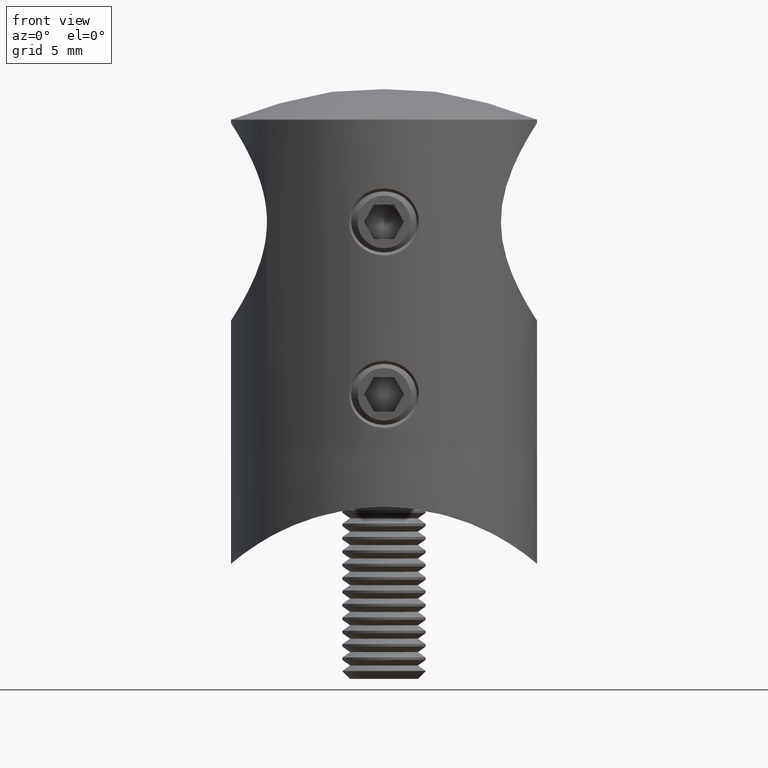
[diagram: clean part render]
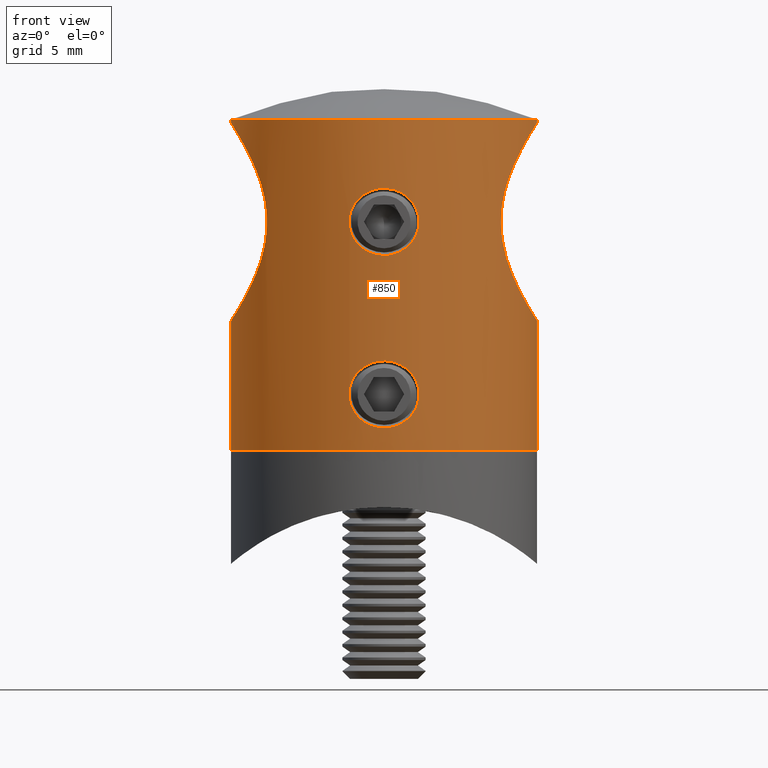
[diagram: same view with one face highlighted and labeled with its STEP entity id]
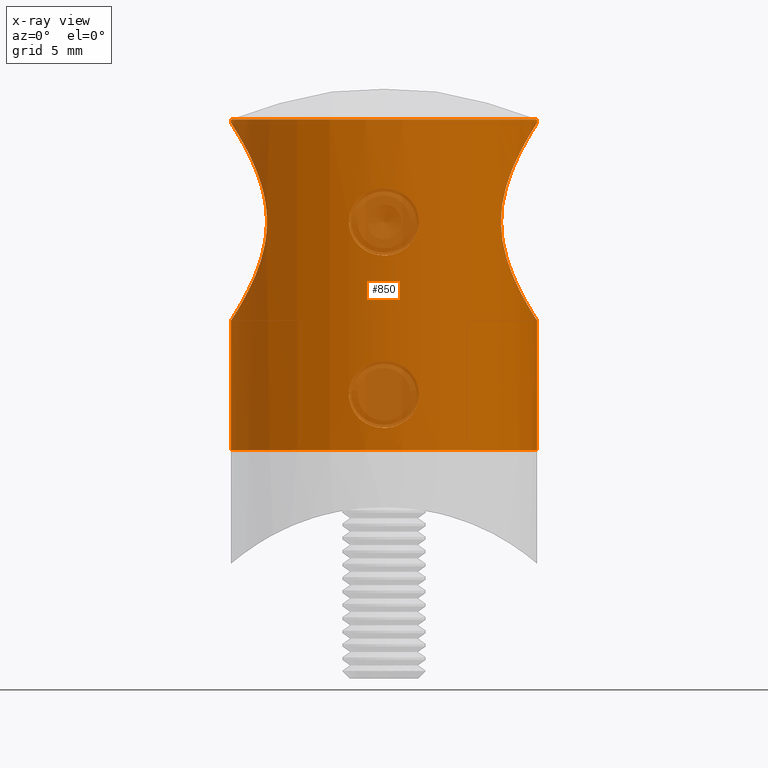
[diagram: x-ray of the same camera — body ghosted, the highlighted face saturated]
A machine part, front view. The second image highlights one B-rep face of the part: STEP entity #850.
The next image is the same camera in x-ray: the body ghosted, the highlighted face saturated — about 8% of this face is hidden behind the body in this view.
In plain terms, the highlighted cylindrical surface (bore or boss wall) has radius 11 mm, axis along (0, 0, 1).
Its self-contained STEP definition (entity closure, byte-faithful):
#122 = CARTESIAN_POINT ( 'NONE',  ( 10.99999999999999600, 0.0000000000000000000, 23.74878637916747000 ) ) ;
#145 = CARTESIAN_POINT ( 'NONE',  ( 8.441615027164326400, -7.053644850158703700, 17.33924664838004000 ) ) ;
#220 = CARTESIAN_POINT ( 'NONE',  ( 10.84297000111511100, -1.910690892895690100, 23.25460155054432200 ) ) ;
#303 = CARTESIAN_POINT ( 'NONE',  ( 9.611617826107234900, -5.361562930642149300, 21.07654444607350500 ) ) ;
#383 = CARTESIAN_POINT ( 'NONE',  ( 8.604462001010002600, -6.853532578562345100, 18.26917815072582100 ) ) ;
#456 = CARTESIAN_POINT ( 'NONE',  ( 9.454023007717232500, 5.631244608318725800, 20.74775790618729200 ) ) ;
#850 = ADVANCED_FACE ( 'NONE', ( #15464, #22122, #18250, #13267, #6925, #13543 ), #11902, .T. ) ;
#872 = CARTESIAN_POINT ( 'NONE',  ( -9.941559082019182400, 4.721753626895441000, 21.72179177554297200 ) ) ;
#954 = CARTESIAN_POINT ( 'NONE',  ( -10.52162891456611900, 3.215649772253206700, 22.73424068538132700 ) ) ;
#1178 = CARTESIAN_POINT ( 'NONE',  ( -8.716197689742701400, 6.713987155183081900, 14.04568685242710500 ) ) ;
#1258 = CARTESIAN_POINT ( 'NONE',  ( -8.713338137559071900, -6.714570131918350200, 14.08064251900250200 ) ) ;
#1327 = CARTESIAN_POINT ( 'NONE',  ( -9.126122353799150500, -6.148371097858401400, 12.82074655299189400 ) ) ;
#1399 = CARTESIAN_POINT ( 'NONE',  ( -10.83727758145454500, -1.898942890585058700, 9.554592817602502600 ) ) ;
#1405 = CARTESIAN_POINT ( 'NONE',  ( -1.397269774137160900, -10.91089534265097100, 14.39305190935820100 ) ) ;
#1455 = CARTESIAN_POINT ( 'NONE',  ( -2.495363705507605000, -10.71327480271960800, 4.317531738034352500 ) ) ;
#1459 = CARTESIAN_POINT ( 'NONE',  ( 1.995493121756457100, -10.81788920119303300, 14.92473889477621200 ) ) ;
#1492 = CARTESIAN_POINT ( 'NONE',  ( 1.893470199320557800, -10.83645095077188500, 17.99473827165266100 ) ) ;
#1540 = CARTESIAN_POINT ( 'NONE',  ( 2.511715917072544300, -10.70940162436372500, 3.998297708608496300 ) ) ;
#1571 = CARTESIAN_POINT ( 'NONE',  ( -10.93554320940684800, 1.212055794307699500, 23.39982116040938800 ) ) ;
#1575 = CARTESIAN_POINT ( 'NONE',  ( 2.511631889561162000, -10.70942133164945500, 16.23990702731718000 ) ) ;
#1617 = CARTESIAN_POINT ( 'NONE',  ( -2.087678545343330000, -10.80007399471471700, 2.657151107508259000 ) ) ;
#1648 = CARTESIAN_POINT ( 'NONE',  ( -2.511729057886776100, -10.70939854239878000, 16.55793633575457200 ) ) ;
#1697 = CARTESIAN_POINT ( 'NONE',  ( 1.535022905085276800, -10.89323192799682400, 5.918116975765959100 ) ) ;
#1734 = CARTESIAN_POINT ( 'NONE',  ( -2.087083062809130600, -10.80018908579545200, 17.74370445952115500 ) ) ;
#1778 = CARTESIAN_POINT ( 'NONE',  ( -1.892899697423030100, -10.83654340792634900, 2.404725380980155000 ) ) ;
#1779 = CARTESIAN_POINT ( 'NONE',  ( 11.00000000000000400, -4.065758146820641600E-016, 9.299999999999998900 ) ) ;
#1935 = CARTESIAN_POINT ( 'NONE',  ( 9.134031390889505900, 6.136687821570410200, 19.99930232546839500 ) ) ;
#2013 = CARTESIAN_POINT ( 'NONE',  ( 10.10591008084336000, 4.348277020147662600, 22.01730710083607100 ) ) ;
#2088 = CARTESIAN_POINT ( 'NONE',  ( 8.400921406657444000, 7.101022558136128800, 15.93882788113832800 ) ) ;
#2119 = B_SPLINE_CURVE_WITH_KNOTS ( 'NONE', 3,
 ( #13461, #11495, #9848, #18715, #13394, #11717, #17068, #20441, #9922, #6526, #7917, #2966, #11641, #1178, #22212, #16923, #9691, #2808, #20511, #4603, #16778, #8137, #15302, #2889, #15228, #15079, #22352, #11567, #20294, #872, #6233, #9773, #20368, #954, #2737, #13320, #4533, #1571, #5051, #11935, #6753, #4895, #13837, #3279, #15379, #22653, #8440, #13920, #3356, #8365, #20817, #22582, #6600, #12013, #10317, #10078, #8277, #4823, #17140, #15687, #17373, #20732, #3201, #5127, #18870, #20966, #22425, #1258, #20655, #4970, #1327, #15611, #10230, #12088, #8520, #11860, #10152, #17220, #17296, #19024, #13613, #1399, #22731, #6677, #19102, #3041 ),
 .UNSPECIFIED., .T., .F.,
 ( 4, 2, 2, 2, 2, 2, 2, 2, 2, 2, 2, 2, 2, 2, 2, 2, 2, 2, 2, 2, 2, 2, 2, 2, 2, 2, 2, 2, 2, 2, 2, 2, 2, 2, 2, 2, 2, 2, 2, 2, 2, 2, 4 ),
 ( 0.0000000000000000000, 0.001429294004371782500, 0.002858588008743564900, 0.004287882013115348000, 0.005717176017487131600, 0.007146470021858916000, 0.008575764026230701200, 0.01000505803060248700, 0.01071970503278837900, 0.01143435203497426500, 0.01286364603934605200, 0.01357829304153194300, 0.01429294004371783200, 0.01572223404808961700, 0.01715152805246140200, 0.01858082205683318800, 0.01929546905901908000, 0.02001011606120497700, 0.02143941006557676500, 0.02215405706776266500, 0.02286870406994855700, 0.02358335107213445400, 0.02429799807432034600, 0.02572729207869214500, 0.02644193908087803800, 0.02715658608306393400, 0.02787123308524983000, 0.02858588008743573000, 0.03001517409180752900, 0.03144446809617931800, 0.03287376210055111000, 0.03430305610492290200, 0.03573235010929469400, 0.03644699711148059700, 0.03716164411366650000, 0.03859093811803830000, 0.04002023212241010600, 0.04144952612678190500, 0.04216417312896780800, 0.04287882013115371100, 0.04359346713333961400, 0.04430811413552551700, 0.04573740813989731600 ),
 .UNSPECIFIED. ) ;
#2159 = CARTESIAN_POINT ( 'NONE',  ( 8.775104742126355700, 6.634005485550293500, 13.85960298956172700 ) ) ;
#2230 = CARTESIAN_POINT ( 'NONE',  ( 8.971544570989790300, -6.368727316150223100, 19.57206776467770100 ) ) ;
#2429 = CARTESIAN_POINT ( 'NONE',  ( 0.0000000000000000000, 0.0000000000000000000, 25.99999999999999600 ) ) ;
#2668 = ORIENTED_EDGE ( 'NONE', *, *, #8670, .T. ) ;
#2737 = CARTESIAN_POINT ( 'NONE',  ( -10.58394417430352300, 3.004956304348640900, 22.83701482432169200 ) ) ;
#2808 = CARTESIAN_POINT ( 'NONE',  ( -8.413237320255293000, 7.086500040589212900, 15.90136674223512400 ) ) ;
#2860 = CARTESIAN_POINT ( 'NONE',  ( -1.533328306870229700, -10.89347143110832900, 2.080631270009437800 ) ) ;
#2889 = CARTESIAN_POINT ( 'NONE',  ( -8.712531411531246700, 6.715614010298820900, 18.71630400190571200 ) ) ;
#2966 = CARTESIAN_POINT ( 'NONE',  ( -9.132219529114744100, 6.139339865191939100, 12.80533429294058900 ) ) ;
#3041 = CARTESIAN_POINT ( 'NONE',  ( -10.99999999999999600, 2.710505431213761100E-016, 9.299999999999995400 ) ) ;
#3042 = VERTEX_POINT ( 'NONE', #17723 ) ;
#3092 = CARTESIAN_POINT ( 'NONE',  ( -0.3315329495189393000, -10.99999999999999600, 1.584844930053871600 ) ) ;
#3201 = CARTESIAN_POINT ( 'NONE',  ( -8.402678174434401000, -7.098943678384630500, 16.89213793340527300 ) ) ;
#3211 = CARTESIAN_POINT ( 'NONE',  ( 1.998357958369216600, -10.81735236367316800, 17.87152513571616200 ) ) ;
#3253 = CARTESIAN_POINT ( 'NONE',  ( -2.319860156032100400, -10.75259265742242600, 4.925778238272567200 ) ) ;
#3279 = CARTESIAN_POINT ( 'NONE',  ( -10.96270294519259100, -0.9359780770641063000, 23.44210052358779400 ) ) ;
#3284 = CARTESIAN_POINT ( 'NONE',  ( -2.430803093581094000, -10.72810763096586800, 17.02839688706989600 ) ) ;
#3330 = CARTESIAN_POINT ( 'NONE',  ( -2.177980241879993600, -10.78262365602483500, 5.213167996627087900 ) ) ;
#3331 = CARTESIAN_POINT ( 'NONE',  ( 10.96821046489719200, -0.9576882426351975800, 9.348973725324684700 ) ) ;
#3356 = CARTESIAN_POINT ( 'NONE',  ( -10.53058741645235900, -3.186281656805154800, 22.74910505009927800 ) ) ;
#3363 = CARTESIAN_POINT ( 'NONE',  ( -2.177980241902248300, -10.78262365602053500, 17.61316799658935400 ) ) ;
#3409 = CARTESIAN_POINT ( 'NONE',  ( -0.4903270790838651400, -10.98906635504204500, 6.368688208749404100 ) ) ;
#3412 = CARTESIAN_POINT ( 'NONE',  ( 9.132219529114749400, -6.139339865191940900, 12.80533429294058900 ) ) ;
#3445 = CARTESIAN_POINT ( 'NONE',  ( -2.511703974928243700, -10.70940442520010400, 16.24273929157860500 ) ) ;
#3465 = CARTESIAN_POINT ( 'NONE',  ( 11.00000000000000000, 0.0000000000000000000, 0.0000000000000000000 ) ) ;
#3488 = CARTESIAN_POINT ( 'NONE',  ( 2.256039582255863900, -10.76635616935171300, 2.926755654170211800 ) ) ;
#3489 = CARTESIAN_POINT ( 'NONE',  ( 8.413237320255296600, -7.086500040589212900, 15.90136674223512400 ) ) ;
#3521 = CARTESIAN_POINT ( 'NONE',  ( 2.320207892953276600, -10.75251762767572900, 17.32497216206398200 ) ) ;
#3566 = CARTESIAN_POINT ( 'NONE',  ( 1.116343252776195600, -10.94426300031197400, 6.169244775404881600 ) ) ;
#3567 = CARTESIAN_POINT ( 'NONE',  ( 10.53371792439568500, -3.199456506150320800, 10.04470791799388100 ) ) ;
#3725 = CARTESIAN_POINT ( 'NONE',  ( 10.99297397562942900, 0.4598195259154076500, 23.48913258083436500 ) ) ;
#3804 = CARTESIAN_POINT ( 'NONE',  ( 8.974584736475273800, 6.364495021462755800, 13.21915323638559100 ) ) ;
#3876 = CARTESIAN_POINT ( 'NONE',  ( 8.442684130846840800, 7.052366154554805500, 15.45217027337697100 ) ) ;
#3905 = VERTEX_POINT ( 'NONE', #19127 ) ;
#3952 = CARTESIAN_POINT ( 'NONE',  ( 9.866065930372878200, 4.867538550024849400, 21.57379312522551000 ) ) ;
#4028 = CARTESIAN_POINT ( 'NONE',  ( 10.76013234905316700, 2.327659393083309600, 23.12391534086663100 ) ) ;
#4430 = DIRECTION ( 'NONE',  ( -0.0000000000000000000, -0.0000000000000000000, 1.000000000000000000 ) ) ;
#4533 = CARTESIAN_POINT ( 'NONE',  ( -10.84297000111510400, 1.910690892895686300, 23.25460155054431900 ) ) ;
#4603 = CARTESIAN_POINT ( 'NONE',  ( -8.400936357774282800, 7.101004865438452100, 16.86596985220173700 ) ) ;
#4674 = CARTESIAN_POINT ( 'NONE',  ( -1.115993498471008700, -10.94431255610991500, 14.23051304831070000 ) ) ;
#4732 = DIRECTION ( 'NONE',  ( -0.0000000000000000000, -0.0000000000000000000, 1.000000000000000000 ) ) ;
#4823 = CARTESIAN_POINT ( 'NONE',  ( -9.134031390889502300, -6.136687821570409300, 19.99930232546839900 ) ) ;
#4895 = CARTESIAN_POINT ( 'NONE',  ( -11.00035846530514000, -0.2214725248977521800, 23.50055536974437200 ) ) ;
#4942 = CARTESIAN_POINT ( 'NONE',  ( 1.263044276341072700, -10.92810671215594800, 6.093506342078076600 ) ) ;
#4970 = CARTESIAN_POINT ( 'NONE',  ( -8.974584736475275500, -6.364495021462750500, 13.21915323638558000 ) ) ;
#4976 = CARTESIAN_POINT ( 'NONE',  ( -2.430626934628957100, -10.72814813956344100, 15.77081717116243500 ) ) ;
#4992 = VERTEX_POINT ( 'NONE', #8544 ) ;
#5018 = CARTESIAN_POINT ( 'NONE',  ( -2.511729057886776100, -10.70939854239878000, 4.157936335757463000 ) ) ;
#5051 = CARTESIAN_POINT ( 'NONE',  ( -10.95950930229003000, 0.9729361877379643100, 23.43713052271612400 ) ) ;
#5056 = CARTESIAN_POINT ( 'NONE',  ( 2.431469541523701300, -10.72795581613253500, 17.02585049196845500 ) ) ;
#5099 = CARTESIAN_POINT ( 'NONE',  ( -1.776361239528236000, -10.85562254072522800, 5.707474951774919700 ) ) ;
#5127 = CARTESIAN_POINT ( 'NONE',  ( -8.400921406657444000, -7.101022558136128800, 15.93882788113832500 ) ) ;
#5135 = CARTESIAN_POINT ( 'NONE',  ( -1.261211241404091900, -10.92831925419361200, 14.30547254870696400 ) ) ;
#5179 = CARTESIAN_POINT ( 'NONE',  ( 2.430721202022804000, -10.72812621128730700, 3.371317447623022100 ) ) ;
#5210 = CARTESIAN_POINT ( 'NONE',  ( 0.9648935137385287200, -10.95759921274479100, 18.62983488542676700 ) ) ;
#5259 = CARTESIAN_POINT ( 'NONE',  ( 2.178857699620390800, -10.78245327803794100, 2.788117446777010700 ) ) ;
#5294 = CARTESIAN_POINT ( 'NONE',  ( -1.892899697437106800, -10.83654340792404500, 14.80472538099371200 ) ) ;
#5342 = CARTESIAN_POINT ( 'NONE',  ( 10.84731057724800800, -1.885380813810667400, 9.538551356808243400 ) ) ;
#5423 = CARTESIAN_POINT ( 'NONE',  ( 9.451433528349369300, -5.635541834417797900, 12.05790560231922000 ) ) ;
#5499 = CARTESIAN_POINT ( 'NONE',  ( 0.1643935056628486900, -11.00000000000000000, 1.584844886136918000 ) ) ;
#5500 = CARTESIAN_POINT ( 'NONE',  ( 10.93957804708263900, 1.175367915195186400, 23.40611913367371600 ) ) ;
#5579 = CARTESIAN_POINT ( 'NONE',  ( 9.941566712052258800, 4.721521006677412500, 11.07832343451946900 ) ) ;
#5653 = CARTESIAN_POINT ( 'NONE',  ( 10.59253960969031100, 2.974511089570728300, 22.85112724400619300 ) ) ;
#5663 = CIRCLE ( 'NONE', #12720, 10.99999999999999600 ) ;
#5734 = CARTESIAN_POINT ( 'NONE',  ( 10.74873748235941500, 2.348874627246540800, 9.695645327102669200 ) ) ;
#5803 = CARTESIAN_POINT ( 'NONE',  ( 10.58647855960269600, 2.995887424184126200, 9.958827788779814200 ) ) ;
#5878 = EDGE_CURVE ( 'NONE', #3905, #3905, #13019, .T. ) ;
#5987 = CIRCLE ( 'NONE', #21282, 11.00000000000000000 ) ;
#6233 = CARTESIAN_POINT ( 'NONE',  ( -10.10047049893865000, 4.375164704028947900, 22.01011196334505400 ) ) ;
#6526 = CARTESIAN_POINT ( 'NONE',  ( -9.620235205234212800, 5.345870137422466000, 11.70599883665757400 ) ) ;
#6600 = CARTESIAN_POINT ( 'NONE',  ( -10.10591008084336200, -4.348277020147667000, 22.01730710083607100 ) ) ;
#6647 = CARTESIAN_POINT ( 'NONE',  ( -1.397269774137160900, -10.91089534265097100, 1.993051909358202400 ) ) ;
#6677 = CARTESIAN_POINT ( 'NONE',  ( -10.96804341658750200, -0.9624892842059140600, 9.349217939927076100 ) ) ;
#6709 = CARTESIAN_POINT ( 'NONE',  ( 0.4897246382423631200, -10.98909321912860500, 14.03119656173292800 ) ) ;
#6723 = CARTESIAN_POINT ( 'NONE',  ( 2.511799944583926100, -10.70938191707799400, 4.156688389902742000 ) ) ;
#6753 = CARTESIAN_POINT ( 'NONE',  ( -10.99961482503125000, 0.2557540722021372500, 23.49940324905146500 ) ) ;
#6761 = CARTESIAN_POINT ( 'NONE',  ( 1.535022905045015500, -10.89323192800198800, 18.31811697579191600 ) ) ;
#6805 = CARTESIAN_POINT ( 'NONE',  ( 2.256830909742726800, -10.76619328781119300, 5.071927192361033400 ) ) ;
#6836 = CARTESIAN_POINT ( 'NONE',  ( 2.463499994663159100, -10.72059549541417000, 16.87095394980573500 ) ) ;
#6882 = CARTESIAN_POINT ( 'NONE',  ( -2.463094693421274500, -10.72068862206341100, 3.527090071124106900 ) ) ;
#6918 = CARTESIAN_POINT ( 'NONE',  ( -2.382999229834640100, -10.73896813810979400, 15.62066227062434400 ) ) ;
#6925 = FACE_OUTER_BOUND ( 'NONE', #19275, .T. ) ;
#6962 = CARTESIAN_POINT ( 'NONE',  ( -2.511716516407509900, -10.70940148379944100, 4.000337813666588400 ) ) ;
#6964 = CARTESIAN_POINT ( 'NONE',  ( 8.485167145169288700, -7.000410335542114600, 15.19174385368667200 ) ) ;
#6995 = CARTESIAN_POINT ( 'NONE',  ( 1.263044276381334100, -10.92810671215078600, 18.49350634205210800 ) ) ;
#7039 = CARTESIAN_POINT ( 'NONE',  ( 1.995493121756470000, -10.81788920119303100, 2.524738894776223900 ) ) ;
#7074 = CARTESIAN_POINT ( 'NONE',  ( -0.1616220108473223100, -11.00003883473658200, 18.81531529133300400 ) ) ;
#7276 = CARTESIAN_POINT ( 'NONE',  ( 9.941559082019178800, -4.721753626895443600, 21.72179177554297200 ) ) ;
#7351 = CARTESIAN_POINT ( 'NONE',  ( 1.265772666319474600, -10.93117442413812100, 1.890181047744562000 ) ) ;
#7352 = CARTESIAN_POINT ( 'NONE',  ( 10.32893578937957500, 3.788682685638860500, 22.40898187192343700 ) ) ;
#7357 = EDGE_CURVE ( 'NONE', #4992, #4992, #8483, .T. ) ;
#7362 = EDGE_LOOP ( 'NONE', ( #11532 ) ) ;
#7423 = CARTESIAN_POINT ( 'NONE',  ( 1.890372269886328600, -10.83698242449021300, 2.402011649646420100 ) ) ;
#7424 = CARTESIAN_POINT ( 'NONE',  ( 9.445230156511863500, 5.645901492588390800, 12.07133753557889700 ) ) ;
#7494 = CARTESIAN_POINT ( 'NONE',  ( 8.713338137559064800, 6.714570131918344800, 14.08064251900249500 ) ) ;
#7591 = CARTESIAN_POINT ( 'NONE',  ( 0.0000000000000000000, 0.0000000000000000000, 23.74878637916747000 ) ) ;
#7917 = CARTESIAN_POINT ( 'NONE',  ( -9.451433528349374700, 5.635541834417797900, 12.05790560231922000 ) ) ;
#8137 = CARTESIAN_POINT ( 'NONE',  ( -8.556951803790923300, 6.912471939353778800, 18.03836936382260000 ) ) ;
#8277 = CARTESIAN_POINT ( 'NONE',  ( -9.454023007717237800, -5.631244608318725800, 20.74775790618729600 ) ) ;
#8311 = CARTESIAN_POINT ( 'NONE',  ( 0.6509923734586801100, -10.98190638562795800, 14.06202588692813500 ) ) ;
#8365 = CARTESIAN_POINT ( 'NONE',  ( -10.39889520333792000, -3.592859680259353100, 22.52820406413297100 ) ) ;
#8440 = CARTESIAN_POINT ( 'NONE',  ( -10.76013234905316700, -2.327659393083311400, 23.12391534086663500 ) ) ;
#8483 = B_SPLINE_CURVE_WITH_KNOTS ( 'NONE', 3,
 ( #15272, #3092, #15423, #22260, #13442, #22552, #6647, #2860, #18995, #15200, #1778, #21177, #1617, #15583, #20866, #12062, #19396, #22781, #6882, #10281, #8811, #6962, #5018, #1455, #12212, #10601, #14045, #3253, #17511, #3330, #22624, #8652, #14121, #5099, #22703, #12137, #10525, #19154, #15658, #3409, #13805, #19076, #8572, #17343, #13975, #19317, #3566, #4942, #12378, #1697, #17427, #22933, #21010, #15822, #19239, #17271, #6805, #22856, #8491, #8733, #20936, #10365, #6723, #1540, #15739, #10445, #13890, #5179, #21089, #12297, #3488, #5259, #17594, #7039, #7423, #10756, #21486, #7351, #12526, #16209, #21329, #16133, #12749, #5499, #17908 ),
 .UNSPECIFIED., .T., .F.,
 ( 4, 3, 3, 3, 3, 3, 3, 3, 3, 3, 3, 3, 3, 3, 3, 3, 3, 3, 3, 3, 3, 3, 3, 3, 3, 3, 3, 3, 4 ),
 ( 0.0000000000000000000, 0.03571428571428571200, 0.07142857142857142500, 0.1071428571428571400, 0.1428571428571428500, 0.1785714285714285800, 0.2142857142857142700, 0.2500000000000000000, 0.2857142857142857000, 0.3214285714285714500, 0.3571428571428571500, 0.3928571428571428500, 0.4285714285714285500, 0.4642857142857143000, 0.5000000000000000000, 0.5357142857142857000, 0.5714285714285714000, 0.6071428571428571000, 0.6428571428571429000, 0.6785714285714286000, 0.7142857142857143000, 0.7500000000000000000, 0.7857142857142857000, 0.8214285714285714000, 0.8571428571428571000, 0.8928571428571429000, 0.9285714285714286000, 0.9642857142857143000, 1.000000000000000000 ),
 .UNSPECIFIED. ) ;
#8491 = CARTESIAN_POINT ( 'NONE',  ( 2.383584876163826700, -10.73884196754026400, 4.778017131766939800 ) ) ;
#8520 = CARTESIAN_POINT ( 'NONE',  ( -10.10047034617905800, -4.375483649562109000, 10.78982942695773400 ) ) ;
#8527 = CARTESIAN_POINT ( 'NONE',  ( -1.777212278540741600, -10.85548324659036000, 14.69334404728969000 ) ) ;
#8544 = CARTESIAN_POINT ( 'NONE',  ( -2.020667218593132300E-015, -10.99999999999999800, 1.584844900694847100 ) ) ;
#8572 = CARTESIAN_POINT ( 'NONE',  ( 0.002621827913299337800, -10.99999968754628400, 6.415153783528235300 ) ) ;
#8599 = CARTESIAN_POINT ( 'NONE',  ( 2.318934602487287200, -10.75279230290379400, 15.47208026934992200 ) ) ;
#8603 = CARTESIAN_POINT ( 'NONE',  ( -2.256864148927046000, -10.76618397735132100, 17.47173985643386700 ) ) ;
#8652 = CARTESIAN_POINT ( 'NONE',  ( -1.996185883738268000, -10.81775451556606900, 5.474240922415229500 ) ) ;
#8670 = EDGE_CURVE ( 'NONE', #9692, #9692, #5987, .T. ) ;
#8688 = CARTESIAN_POINT ( 'NONE',  ( -2.382856163137154800, -10.73900133749353000, 17.17981662011126800 ) ) ;
#8733 = CARTESIAN_POINT ( 'NONE',  ( 2.431469541523701300, -10.72795581613253500, 4.625850491968456000 ) ) ;
#8767 = CARTESIAN_POINT ( 'NONE',  ( -1.892943344172693700, -10.83654561251257900, 17.99533139784182700 ) ) ;
#8811 = CARTESIAN_POINT ( 'NONE',  ( -2.511703974928243700, -10.70940442520010400, 3.842739291575714100 ) ) ;
#8968 = CARTESIAN_POINT ( 'NONE',  ( 10.99148700237106600, -0.4946336514024511400, 23.48682921834958400 ) ) ;
#8969 = CARTESIAN_POINT ( 'NONE',  ( 1.890372269886392700, -10.83698242449020200, 14.80201164964647400 ) ) ;
#9050 = CARTESIAN_POINT ( 'NONE',  ( 9.125703618000468300, -6.149007665515014800, 19.97822596878964800 ) ) ;
#9124 = CARTESIAN_POINT ( 'NONE',  ( 8.712531411531246700, -6.715614010298820000, 18.71630400190571900 ) ) ;
#9192 = ORIENTED_EDGE ( 'NONE', *, *, #5878, .T. ) ;
#9202 = CARTESIAN_POINT ( 'NONE',  ( 10.10047034617905700, 4.375483649562105400, 10.78982942695773600 ) ) ;
#9273 = ORIENTED_EDGE ( 'NONE', *, *, #18265, .F. ) ;
#9283 = CARTESIAN_POINT ( 'NONE',  ( 10.39889520333791500, 3.592859680259352700, 22.52820406413297500 ) ) ;
#9416 = CARTESIAN_POINT ( 'NONE',  ( 11.00000000000000400, -4.065758146820641600E-016, 9.299999999999998900 ) ) ;
#9638 = CARTESIAN_POINT ( 'NONE',  ( 10.87554067984692500, 1.666944937178387300, 9.494294178244365100 ) ) ;
#9691 = CARTESIAN_POINT ( 'NONE',  ( -8.454743453844088200, 7.036928176547486500, 15.42595698804817600 ) ) ;
#9692 = VERTEX_POINT ( 'NONE', #3465 ) ;
#9773 = CARTESIAN_POINT ( 'NONE',  ( -10.31976075114465800, 3.813519458579155000, 22.39319822350306000 ) ) ;
#9848 = CARTESIAN_POINT ( 'NONE',  ( -10.96821046489719000, 0.9576882426351973600, 9.348973725324683000 ) ) ;
#9922 = CARTESIAN_POINT ( 'NONE',  ( -9.946385993569125000, 4.711332995782086600, 11.06939817182897000 ) ) ;
#9928 = CARTESIAN_POINT ( 'NONE',  ( -0.6586619930911564700, -10.98452728325967300, 14.04785758938482100 ) ) ;
#9956 = VERTEX_POINT ( 'NONE', #12657 ) ;
#10030 = CARTESIAN_POINT ( 'NONE',  ( 2.463009590041774600, -10.72070817434008000, 15.92668043077660700 ) ) ;
#10061 = EDGE_LOOP ( 'NONE', ( #2668 ) ) ;
#10078 = CARTESIAN_POINT ( 'NONE',  ( -9.620087015600834200, -5.346277183801666900, 21.09378180451514600 ) ) ;
#10152 = CARTESIAN_POINT ( 'NONE',  ( -10.39262641175012400, -3.610959546615189400, 10.28242976620969400 ) ) ;
#10203 = CARTESIAN_POINT ( 'NONE',  ( 2.087175410688430600, -10.80017123961548500, 15.05642817077661600 ) ) ;
#10230 = CARTESIAN_POINT ( 'NONE',  ( -9.614416560844219400, -5.356351696933844100, 11.71785320789334200 ) ) ;
#10281 = CARTESIAN_POINT ( 'NONE',  ( -2.495562452211827600, -10.71322910456378900, 3.683362971071481300 ) ) ;
#10317 = CARTESIAN_POINT ( 'NONE',  ( -9.866065930372879900, -4.867538550024850300, 21.57379312522552100 ) ) ;
#10321 = CARTESIAN_POINT ( 'NONE',  ( 1.777126563584013900, -10.85549727912102600, 18.10673847623389300 ) ) ;
#10365 = CARTESIAN_POINT ( 'NONE',  ( 2.495530447802617200, -10.71323517469580200, 4.316057407643017800 ) ) ;
#10366 = CARTESIAN_POINT ( 'NONE',  ( 8.716197689742696000, -6.713987155183075700, 14.04568685242709100 ) ) ;
#10403 = CARTESIAN_POINT ( 'NONE',  ( -2.320240922396904300, -10.75251050043824500, 15.47510444509774700 ) ) ;
#10428 = CARTESIAN_POINT ( 'NONE',  ( 0.1643935056931485900, -11.00000000000000000, 13.98484488613688500 ) ) ;
#10445 = CARTESIAN_POINT ( 'NONE',  ( 2.495297978060744700, -10.71329013739285200, 3.682043413930197400 ) ) ;
#10479 = CARTESIAN_POINT ( 'NONE',  ( -1.543197030239320100, -10.89377639715052800, 18.33176205964109700 ) ) ;
#10525 = CARTESIAN_POINT ( 'NONE',  ( -0.9631123533028165300, -10.95775591053731500, 6.230546734909931500 ) ) ;
#10526 = CARTESIAN_POINT ( 'NONE',  ( 8.454743453844093500, -7.036928176547490000, 15.42595698804817400 ) ) ;
#10557 = CARTESIAN_POINT ( 'NONE',  ( -1.268443744548116500, -10.93091935411460000, 18.50864464349973900 ) ) ;
#10601 = CARTESIAN_POINT ( 'NONE',  ( -2.430803093581094000, -10.72810763096586800, 4.628396887069898800 ) ) ;
#10756 = CARTESIAN_POINT ( 'NONE',  ( 1.774878405260975000, -10.85586508052390200, 2.291099913721534000 ) ) ;
#10757 = CARTESIAN_POINT ( 'NONE',  ( 10.38970443803621400, -3.619270667396483600, 22.51260078479329600 ) ) ;
#10839 = CARTESIAN_POINT ( 'NONE',  ( 10.52162891456611900, -3.215649772253206300, 22.73424068538132300 ) ) ;
#10913 = CARTESIAN_POINT ( 'NONE',  ( 8.602017511315835900, 6.857174581406583900, 18.30214852131759100 ) ) ;
#10995 = CARTESIAN_POINT ( 'NONE',  ( 10.31976075114465600, -3.813519458579155000, 22.39319822350305600 ) ) ;
#11072 = CARTESIAN_POINT ( 'NONE',  ( 10.75343564665797500, -2.358425003356712700, 23.11323472417504000 ) ) ;
#11293 = CARTESIAN_POINT ( 'NONE',  ( 10.96804341658750400, 0.9624892842059139500, 9.349217939927076100 ) ) ;
#11393 = CARTESIAN_POINT ( 'NONE',  ( 2.178857699620404100, -10.78245327803794000, 15.18811744677702300 ) ) ;
#11495 = CARTESIAN_POINT ( 'NONE',  ( -10.99999999999999500, 0.4841043843129387300, 9.299999999999995400 ) ) ;
#11532 = ORIENTED_EDGE ( 'NONE', *, *, #16466, .T. ) ;
#11567 = CARTESIAN_POINT ( 'NONE',  ( -9.445165846722382200, 5.646025497822180700, 20.72855546715352300 ) ) ;
#11641 = CARTESIAN_POINT ( 'NONE',  ( -8.981137454154914900, 6.355225858788589500, 13.20132555570548200 ) ) ;
#11717 = CARTESIAN_POINT ( 'NONE',  ( -10.53371792439568500, 3.199456506150320000, 10.04470791799387700 ) ) ;
#11858 = B_SPLINE_CURVE_WITH_KNOTS ( 'NONE', 3,
 ( #12020, #16926, #9928, #22431, #4674, #5135, #1405, #13925, #21042, #8527, #5294, #19106, #17301, #22814, #19270, #10403, #6918, #4976, #19195, #15541, #3445, #15619, #1648, #12253, #15772, #3284, #8688, #17551, #8603, #3363, #1734, #15863, #8767, #17377, #10479, #10557, #14006, #17626, #17463, #22736, #14078, #7074, #19434, #13843, #15693, #5210, #12093, #6995, #19353, #6761, #13765, #10321, #1492, #3211, #20970, #20898, #22659, #3521, #21128, #5056, #6836, #22892, #12333, #12168, #1575, #21795, #10030, #15156, #20818, #8599, #19901, #11393, #10203, #1459, #8969, #17814, #16208, #21556, #20764, #20920, #8311, #6709, #13788, #10428, #12119 ),
 .UNSPECIFIED., .T., .F.,
 ( 4, 3, 3, 3, 3, 3, 3, 3, 3, 3, 3, 3, 3, 3, 3, 3, 3, 3, 3, 3, 3, 3, 3, 3, 3, 3, 3, 3, 4 ),
 ( 0.0000000000000000000, 0.03571428571428571200, 0.07142857142857142500, 0.1071428571428571400, 0.1428571428571428500, 0.1785714285714285800, 0.2142857142857142700, 0.2500000000000000000, 0.2857142857142857000, 0.3214285714285714500, 0.3571428571428571500, 0.3928571428571428500, 0.4285714285714285500, 0.4642857142857143000, 0.5000000000000000000, 0.5357142857142857000, 0.5714285714285714000, 0.6071428571428571000, 0.6428571428571429000, 0.6785714285714286000, 0.7142857142857143000, 0.7500000000000000000, 0.7857142857142857000, 0.8214285714285714000, 0.8571428571428571000, 0.8928571428571429000, 0.9285714285714286000, 0.9642857142857143000, 1.000000000000000000 ),
 .UNSPECIFIED. ) ;
#11860 = CARTESIAN_POINT ( 'NONE',  ( -10.32148190190005700, -3.808950110484047100, 10.40382481806966600 ) ) ;
#11902 = CYLINDRICAL_SURFACE ( 'NONE', #15187, 10.99999999999999800 ) ;
#11935 = CARTESIAN_POINT ( 'NONE',  ( -10.99148700237107000, 0.4946336514024489700, 23.48682921834959500 ) ) ;
#12013 = CARTESIAN_POINT ( 'NONE',  ( -9.947855748482227900, -4.698627205197779800, 21.72771569207881400 ) ) ;
#12020 = CARTESIAN_POINT ( 'NONE',  ( -2.020667218593132300E-015, -10.99999999999999800, 13.98484490069484600 ) ) ;
#12062 = CARTESIAN_POINT ( 'NONE',  ( -2.320240922396904300, -10.75251050043824500, 3.075104445097748900 ) ) ;
#12088 = CARTESIAN_POINT ( 'NONE',  ( -9.941566712052260600, -4.721521006677416900, 11.07832343451947400 ) ) ;
#12093 = CARTESIAN_POINT ( 'NONE',  ( 1.116343252776377500, -10.94426300031195800, 18.56924477539900700 ) ) ;
#12119 = CARTESIAN_POINT ( 'NONE',  ( -2.020667218593132300E-015, -10.99999999999999800, 13.98484490069484600 ) ) ;
#12126 = ORIENTED_EDGE ( 'NONE', *, *, #19698, .T. ) ;
#12137 = CARTESIAN_POINT ( 'NONE',  ( -1.268443744210112200, -10.93091935414430800, 6.108644643610253100 ) ) ;
#12168 = CARTESIAN_POINT ( 'NONE',  ( 2.511715917072544300, -10.70940162436372500, 16.39829770860849600 ) ) ;
#12212 = CARTESIAN_POINT ( 'NONE',  ( -2.463083399544349300, -10.72069121684273800, 4.472964312552125700 ) ) ;
#12253 = CARTESIAN_POINT ( 'NONE',  ( -2.495363705507605000, -10.71327480271960800, 16.71753173803435300 ) ) ;
#12297 = CARTESIAN_POINT ( 'NONE',  ( 2.318934602487287200, -10.75279230290379400, 3.072080269349922100 ) ) ;
#12333 = CARTESIAN_POINT ( 'NONE',  ( 2.511799944583926100, -10.70938191707799400, 16.55668838989981500 ) ) ;
#12378 = CARTESIAN_POINT ( 'NONE',  ( 1.399033590713174800, -10.91066932007638700, 6.005811658922017800 ) ) ;
#12526 = CARTESIAN_POINT ( 'NONE',  ( 0.9623838866416614100, -10.95781991341035100, 1.769162574123964900 ) ) ;
#12528 = CARTESIAN_POINT ( 'NONE',  ( 10.99961482503124400, -0.2557540722021420200, 23.49940324905145100 ) ) ;
#12610 = CARTESIAN_POINT ( 'NONE',  ( 11.00035846530514200, 0.2214725248977498800, 23.50055536974437600 ) ) ;
#12657 = CARTESIAN_POINT ( 'NONE',  ( -2.020667218593132300E-015, -10.99999999999999800, 13.98484490069484600 ) ) ;
#12680 = CARTESIAN_POINT ( 'NONE',  ( 10.10047049893863900, -4.375164704028945200, 22.01011196334505000 ) ) ;
#12720 = AXIS2_PLACEMENT_3D ( 'NONE', #7591, #4430, #20123 ) ;
#12749 = CARTESIAN_POINT ( 'NONE',  ( 0.3284569029660139900, -10.99628005263193000, 1.600367236529137300 ) ) ;
#12751 = CARTESIAN_POINT ( 'NONE',  ( 8.402678174434404600, 7.098943678384629600, 16.89213793340527300 ) ) ;
#12826 = CARTESIAN_POINT ( 'NONE',  ( 8.558052539306178400, 6.911109365526332500, 14.75603232091404100 ) ) ;
#13019 = B_SPLINE_CURVE_WITH_KNOTS ( 'NONE', 3,
 ( #1779, #19398, #3331, #5342, #15660, #3567, #17674, #15740, #21248, #21011, #5423, #3412, #22858, #10366, #17512, #6964, #10526, #3489, #19723, #19571, #145, #16055, #383, #9124, #14582, #2230, #9050, #21488, #303, #7276, #12680, #10995, #10757, #10839, #18135, #11072, #220, #19640, #14436, #8968, #12528, #12610, #3725, #17984, #5500, #21637, #4028, #5653, #17833, #9283, #7352, #18058, #2013, #14287, #3952, #17909, #456, #1935, #14361, #21413, #10913, #16134, #12751, #2088, #3876, #12826, #16358, #7494, #2159, #3804, #16211, #7424, #19802, #5579, #9202, #16284, #21331, #21563, #5803, #14512, #5734, #19946, #9638, #11293, #18363, #9416 ),
 .UNSPECIFIED., .T., .F.,
 ( 4, 2, 2, 2, 2, 2, 2, 2, 2, 2, 2, 2, 2, 2, 2, 2, 2, 2, 2, 2, 2, 2, 2, 2, 2, 2, 2, 2, 2, 2, 2, 2, 2, 2, 2, 2, 2, 2, 2, 2, 2, 2, 4 ),
 ( 0.0000000000000000000, 0.001429294004371784200, 0.002858588008743568400, 0.004287882013115352400, 0.005717176017487137600, 0.007146470021858922900, 0.008575764026230708200, 0.01000505803060249300, 0.01071970503278838600, 0.01143435203497427400, 0.01286364603934605700, 0.01357829304153195000, 0.01429294004371784100, 0.01572223404808962800, 0.01715152805246140900, 0.01858082205683319500, 0.01929546905901909100, 0.02001011606120498700, 0.02143941006557678300, 0.02215405706776268200, 0.02286870406994858200, 0.02358335107213447800, 0.02429799807432037700, 0.02572729207869217300, 0.02644193908087807600, 0.02715658608306396900, 0.02787123308524986500, 0.02858588008743576100, 0.03001517409180755700, 0.03144446809617935200, 0.03287376210055114500, 0.03430305610492294400, 0.03573235010929473600, 0.03644699711148063200, 0.03716164411366652800, 0.03859093811803832700, 0.04002023212241012700, 0.04144952612678192600, 0.04216417312896782200, 0.04287882013115372500, 0.04359346713333962100, 0.04430811413552551700, 0.04573740813989731600 ),
 .UNSPECIFIED. ) ;
#13267 = FACE_BOUND ( 'NONE', #16623, .T. ) ;
#13320 = CARTESIAN_POINT ( 'NONE',  ( -10.75343564665797100, 2.358425003356712700, 23.11323472417503300 ) ) ;
#13384 = DIRECTION ( 'NONE',  ( 1.000000000000000000, 0.0000000000000000000, 0.0000000000000000000 ) ) ;
#13394 = CARTESIAN_POINT ( 'NONE',  ( -10.75664178787482500, 2.343158699880904600, 9.681676794799933800 ) ) ;
#13442 = CARTESIAN_POINT ( 'NONE',  ( -1.115993498496286900, -10.94431255610769100, 1.830513048320795400 ) ) ;
#13461 = CARTESIAN_POINT ( 'NONE',  ( -10.99999999999999600, 2.710505431213761100E-016, 9.299999999999995400 ) ) ;
#13543 = FACE_OUTER_BOUND ( 'NONE', #10061, .T. ) ;
#13613 = CARTESIAN_POINT ( 'NONE',  ( -10.74873748235941300, -2.348874627246540400, 9.695645327102667500 ) ) ;
#13765 = CARTESIAN_POINT ( 'NONE',  ( 1.660782927847469700, -10.87454360747016800, 18.21873868081512500 ) ) ;
#13788 = CARTESIAN_POINT ( 'NONE',  ( 0.3284569030260461900, -10.99628005262925400, 14.00036723653772300 ) ) ;
#13805 = CARTESIAN_POINT ( 'NONE',  ( -0.3276201266150175500, -10.99632626431669300, 6.399832416815710800 ) ) ;
#13837 = CARTESIAN_POINT ( 'NONE',  ( -10.99297397562942500, -0.4598195259154094200, 23.48913258083435500 ) ) ;
#13843 = CARTESIAN_POINT ( 'NONE',  ( 0.3311095054345719000, -10.99992139316568700, 18.81483076791868600 ) ) ;
#13890 = CARTESIAN_POINT ( 'NONE',  ( 2.463009590041774600, -10.72070817434008000, 3.526680430776609800 ) ) ;
#13920 = CARTESIAN_POINT ( 'NONE',  ( -10.59253960969030900, -2.974511089570729200, 22.85112724400618200 ) ) ;
#13925 = CARTESIAN_POINT ( 'NONE',  ( -1.533328306870229700, -10.89347143110832900, 14.48063127000943600 ) ) ;
#13975 = CARTESIAN_POINT ( 'NONE',  ( 0.6619940356631945900, -10.98427163761042500, 6.351015105470548100 ) ) ;
#14006 = CARTESIAN_POINT ( 'NONE',  ( -0.9631123533028067600, -10.95775591053731500, 18.63054673490993100 ) ) ;
#14045 = CARTESIAN_POINT ( 'NONE',  ( -2.382856163137168100, -10.73900133749352800, 4.779816620111248000 ) ) ;
#14078 = CARTESIAN_POINT ( 'NONE',  ( -0.3276201266745030200, -10.99632626431403900, 18.79983241680432100 ) ) ;
#14121 = CARTESIAN_POINT ( 'NONE',  ( -1.892943344172719700, -10.83654561251257500, 5.595331397847613400 ) ) ;
#14265 = ORIENTED_EDGE ( 'NONE', *, *, #7357, .T. ) ;
#14287 = CARTESIAN_POINT ( 'NONE',  ( 9.947855748482229600, 4.698627205197778900, 21.72771569207881700 ) ) ;
#14361 = CARTESIAN_POINT ( 'NONE',  ( 8.979158664259912800, 6.358026487253727800, 19.59329309121693200 ) ) ;
#14436 = CARTESIAN_POINT ( 'NONE',  ( 10.95950930229003000, -0.9729361877379636400, 23.43713052271612800 ) ) ;
#14512 = CARTESIAN_POINT ( 'NONE',  ( 10.69829764722810100, 2.568131071932642200, 9.776651623962862900 ) ) ;
#14582 = CARTESIAN_POINT ( 'NONE',  ( 8.773313068562657700, -6.636362158982227500, 18.93414140837189700 ) ) ;
#15079 = CARTESIAN_POINT ( 'NONE',  ( -8.971544570989790300, 6.368727316150223100, 19.57206776467770800 ) ) ;
#15156 = CARTESIAN_POINT ( 'NONE',  ( 2.430721202022829700, -10.72812621128730400, 15.77131744761732800 ) ) ;
#15187 = AXIS2_PLACEMENT_3D ( 'NONE', #2429, #4732, #13384 ) ;
#15200 = CARTESIAN_POINT ( 'NONE',  ( -1.777212278540741600, -10.85548324659036000, 2.293344047289692400 ) ) ;
#15228 = CARTESIAN_POINT ( 'NONE',  ( -8.773313068562657700, 6.636362158982228400, 18.93414140837189700 ) ) ;
#15272 = CARTESIAN_POINT ( 'NONE',  ( -2.020667218593132300E-015, -10.99999999999999800, 1.584844900694847100 ) ) ;
#15302 = CARTESIAN_POINT ( 'NONE',  ( -8.604462001010004400, 6.853532578562342400, 18.26917815072582800 ) ) ;
#15379 = CARTESIAN_POINT ( 'NONE',  ( -10.93957804708263700, -1.175367915195192100, 23.40611913367371600 ) ) ;
#15417 = DIRECTION ( 'NONE',  ( 1.000000000000000000, 0.0000000000000000000, 0.0000000000000000000 ) ) ;
#15423 = CARTESIAN_POINT ( 'NONE',  ( -0.6586619930405998000, -10.98452728326412000, 1.647857589364626800 ) ) ;
#15464 = FACE_BOUND ( 'NONE', #18815, .T. ) ;
#15541 = CARTESIAN_POINT ( 'NONE',  ( -2.495562452213592400, -10.71322910456338400, 16.08336297108577600 ) ) ;
#15583 = CARTESIAN_POINT ( 'NONE',  ( -2.179285043678576000, -10.78236625296386300, 2.788823219965029600 ) ) ;
#15611 = CARTESIAN_POINT ( 'NONE',  ( -9.445230156511863500, -5.645901492588399700, 12.07133753557890900 ) ) ;
#15619 = CARTESIAN_POINT ( 'NONE',  ( -2.511716516407509900, -10.70940148379944100, 16.40033781366658500 ) ) ;
#15658 = CARTESIAN_POINT ( 'NONE',  ( -0.6530340315527127800, -10.98180644576739700, 6.337544000683097400 ) ) ;
#15660 = CARTESIAN_POINT ( 'NONE',  ( 10.75664178787483000, -2.343158699880905100, 9.681676794799932000 ) ) ;
#15687 = CARTESIAN_POINT ( 'NONE',  ( -8.713927950806921200, -6.716937605689044400, 18.74613954834619600 ) ) ;
#15693 = CARTESIAN_POINT ( 'NONE',  ( 0.6619940356628312200, -10.98427163761045800, 18.75101510548229200 ) ) ;
#15739 = CARTESIAN_POINT ( 'NONE',  ( 2.511631889561162000, -10.70942133164945500, 3.839907027314249300 ) ) ;
#15740 = CARTESIAN_POINT ( 'NONE',  ( 10.10539096786581000, -4.364378087092130300, 10.78095930433928400 ) ) ;
#15772 = CARTESIAN_POINT ( 'NONE',  ( -2.463083399544349300, -10.72069121684273800, 16.87296431255212400 ) ) ;
#15822 = CARTESIAN_POINT ( 'NONE',  ( 1.998357958369267700, -10.81735236367315700, 5.471525135721878800 ) ) ;
#15863 = CARTESIAN_POINT ( 'NONE',  ( -1.996185883716013400, -10.81775451557036900, 17.87424092245295900 ) ) ;
#16055 = CARTESIAN_POINT ( 'NONE',  ( 8.556951803790930500, -6.912471939353781500, 18.03836936382260000 ) ) ;
#16133 = CARTESIAN_POINT ( 'NONE',  ( 0.4897246382423631200, -10.98909321912860500, 1.631196561732932500 ) ) ;
#16134 = CARTESIAN_POINT ( 'NONE',  ( 8.444364125748995400, 7.050408712736896200, 17.36475345057839400 ) ) ;
#16208 = CARTESIAN_POINT ( 'NONE',  ( 1.543890676010139400, -10.89363039259130200, 14.46927644187164600 ) ) ;
#16209 = CARTESIAN_POINT ( 'NONE',  ( 0.8106894968027548200, -10.97114265804646700, 1.708653337313666300 ) ) ;
#16211 = CARTESIAN_POINT ( 'NONE',  ( 9.126122353799150500, 6.148371097858402300, 12.82074655299189000 ) ) ;
#16284 = CARTESIAN_POINT ( 'NONE',  ( 10.32148190190005700, 3.808950110484045700, 10.40382481806966700 ) ) ;
#16358 = CARTESIAN_POINT ( 'NONE',  ( 8.605012383103654000, 6.852844332284524500, 14.52826397732347600 ) ) ;
#16466 = EDGE_CURVE ( 'NONE', #3042, #3042, #2119, .T. ) ;
#16623 = EDGE_LOOP ( 'NONE', ( #9192 ) ) ;
#16778 = CARTESIAN_POINT ( 'NONE',  ( -8.441615027164317600, 7.053644850158699200, 17.33924664838002300 ) ) ;
#16923 = CARTESIAN_POINT ( 'NONE',  ( -8.485167145169281600, 7.000410335542112800, 15.19174385368666700 ) ) ;
#16926 = CARTESIAN_POINT ( 'NONE',  ( -0.3315329493984952600, -10.99999999999999600, 13.98484493005393500 ) ) ;
#17033 = CARTESIAN_POINT ( 'NONE',  ( 0.0000000000000000000, 0.0000000000000000000, 0.0000000000000000000 ) ) ;
#17068 = CARTESIAN_POINT ( 'NONE',  ( -10.40114453351063500, 3.603181246278877500, 10.26497764200933100 ) ) ;
#17140 = CARTESIAN_POINT ( 'NONE',  ( -8.979158664259912800, -6.358026487253732200, 19.59329309121691800 ) ) ;
#17220 = CARTESIAN_POINT ( 'NONE',  ( -10.52509504090270200, -3.204385582520144800, 10.05999941236710000 ) ) ;
#17271 = CARTESIAN_POINT ( 'NONE',  ( 2.179889364258604400, -10.78223673683875500, 5.210013498370140700 ) ) ;
#17296 = CARTESIAN_POINT ( 'NONE',  ( -10.58647855960270200, -2.995887424184125300, 9.958827788779816000 ) ) ;
#17301 = CARTESIAN_POINT ( 'NONE',  ( -2.087678545343330000, -10.80007399471471700, 15.05715110750825800 ) ) ;
#17343 = CARTESIAN_POINT ( 'NONE',  ( 0.3311095053121640400, -10.99992139316571600, 6.414830767918807900 ) ) ;
#17373 = CARTESIAN_POINT ( 'NONE',  ( -8.602017511315839500, -6.857174581406585600, 18.30214852131759400 ) ) ;
#17377 = CARTESIAN_POINT ( 'NONE',  ( -1.776361239528236000, -10.85562254072522800, 18.10747495177491800 ) ) ;
#17427 = CARTESIAN_POINT ( 'NONE',  ( 1.660782927785467800, -10.87454360748031900, 5.818738680863162000 ) ) ;
#17463 = CARTESIAN_POINT ( 'NONE',  ( -0.6530340314932273600, -10.98180644577005100, 18.73754400069448100 ) ) ;
#17511 = CARTESIAN_POINT ( 'NONE',  ( -2.256864148927033100, -10.76618397735132300, 5.071739856433886500 ) ) ;
#17512 = CARTESIAN_POINT ( 'NONE',  ( 8.602152119893858600, -6.856982156598218300, 14.49886696194906400 ) ) ;
#17551 = CARTESIAN_POINT ( 'NONE',  ( -2.319860156032100400, -10.75259265742242600, 17.32577823827256900 ) ) ;
#17594 = CARTESIAN_POINT ( 'NONE',  ( 2.087175410688430600, -10.80017123961548500, 2.656428170776617300 ) ) ;
#17626 = CARTESIAN_POINT ( 'NONE',  ( -0.8104466576801517800, -10.97117418874867300, 18.69149778061502700 ) ) ;
#17674 = CARTESIAN_POINT ( 'NONE',  ( 10.40114453351063000, -3.603181246278879300, 10.26497764200933300 ) ) ;
#17723 = CARTESIAN_POINT ( 'NONE',  ( -10.99999999999999800, 0.0000000000000000000, 9.299999999999998900 ) ) ;
#17814 = CARTESIAN_POINT ( 'NONE',  ( 1.774878405260975000, -10.85586508052390200, 14.69109991372153200 ) ) ;
#17833 = CARTESIAN_POINT ( 'NONE',  ( 10.53058741645235600, 3.186281656805152200, 22.74910505009927800 ) ) ;
#17845 = EDGE_LOOP ( 'NONE', ( #12126 ) ) ;
#17908 = CARTESIAN_POINT ( 'NONE',  ( -2.020667218593132300E-015, -10.99999999999999800, 1.584844900694847100 ) ) ;
#17909 = CARTESIAN_POINT ( 'NONE',  ( 9.620087015600832500, 5.346277183801667800, 21.09378180451515000 ) ) ;
#17984 = CARTESIAN_POINT ( 'NONE',  ( 10.96270294519258900, 0.9359780770641037400, 23.44210052358779400 ) ) ;
#18058 = CARTESIAN_POINT ( 'NONE',  ( 10.18244583592515300, 4.166392664168421700, 22.15353385299223300 ) ) ;
#18135 = CARTESIAN_POINT ( 'NONE',  ( 10.58394417430352200, -3.004956304348640000, 22.83701482432169200 ) ) ;
#18250 = FACE_BOUND ( 'NONE', #7362, .T. ) ;
#18265 = EDGE_CURVE ( 'NONE', #21302, #21302, #5663, .T. ) ;
#18363 = CARTESIAN_POINT ( 'NONE',  ( 11.00000000000000500, 0.4841043843129448900, 9.300000000000000700 ) ) ;
#18715 = CARTESIAN_POINT ( 'NONE',  ( -10.84731057724800600, 1.885380813810666700, 9.538551356808239800 ) ) ;
#18815 = EDGE_LOOP ( 'NONE', ( #14265 ) ) ;
#18870 = CARTESIAN_POINT ( 'NONE',  ( -8.442684130846844300, -7.052366154554801100, 15.45217027337697100 ) ) ;
#18995 = CARTESIAN_POINT ( 'NONE',  ( -1.661524859658452900, -10.87442308525437100, 2.181962713599229900 ) ) ;
#19024 = CARTESIAN_POINT ( 'NONE',  ( -10.69829764722809700, -2.568131071932639600, 9.776651623962857600 ) ) ;
#19076 = CARTESIAN_POINT ( 'NONE',  ( -0.1616220107861330000, -11.00003883473656800, 6.415315291332948500 ) ) ;
#19102 = CARTESIAN_POINT ( 'NONE',  ( -10.99999999999999800, -0.4841043843129450600, 9.299999999999995400 ) ) ;
#19106 = CARTESIAN_POINT ( 'NONE',  ( -1.996072047024378000, -10.81778173646242000, 14.92547899507782500 ) ) ;
#19127 = CARTESIAN_POINT ( 'NONE',  ( 11.00000000000000000, 0.0000000000000000000, 9.299999999999998900 ) ) ;
#19154 = CARTESIAN_POINT ( 'NONE',  ( -0.8104466578491685800, -10.97117418873381900, 6.291497780559771200 ) ) ;
#19195 = CARTESIAN_POINT ( 'NONE',  ( -2.463094693421274500, -10.72068862206341100, 15.92709007112410400 ) ) ;
#19239 = CARTESIAN_POINT ( 'NONE',  ( 2.089123661313935900, -10.79979455025595500, 5.340769317046009800 ) ) ;
#19270 = CARTESIAN_POINT ( 'NONE',  ( -2.257482614959168500, -10.76605286276669600, 15.32954661957115100 ) ) ;
#19275 = EDGE_LOOP ( 'NONE', ( #9273 ) ) ;
#19317 = CARTESIAN_POINT ( 'NONE',  ( 0.9648935137385287200, -10.95759921274479100, 6.229834885426770400 ) ) ;
#19353 = CARTESIAN_POINT ( 'NONE',  ( 1.399033590713174800, -10.91066932007638700, 18.40581165892201200 ) ) ;
#19396 = CARTESIAN_POINT ( 'NONE',  ( -2.382999229848468600, -10.73896813810681100, 3.220662270662221900 ) ) ;
#19398 = CARTESIAN_POINT ( 'NONE',  ( 11.00000000000000000, -0.4841043843129388400, 9.299999999999998900 ) ) ;
#19434 = CARTESIAN_POINT ( 'NONE',  ( 0.002621827913309108200, -10.99999968754628400, 18.81515378352823500 ) ) ;
#19571 = CARTESIAN_POINT ( 'NONE',  ( 8.400936357774289900, -7.101004865438448600, 16.86596985220172600 ) ) ;
#19640 = CARTESIAN_POINT ( 'NONE',  ( 10.93554320940685000, -1.212055794307701500, 23.39982116040939200 ) ) ;
#19698 = EDGE_CURVE ( 'NONE', #9956, #9956, #11858, .T. ) ;
#19723 = CARTESIAN_POINT ( 'NONE',  ( 8.402230374133905500, -7.099473585173072400, 16.14441378369492600 ) ) ;
#19802 = CARTESIAN_POINT ( 'NONE',  ( 9.614416560844226500, 5.356351696933844900, 11.71785320789334300 ) ) ;
#19901 = CARTESIAN_POINT ( 'NONE',  ( 2.256039582261505100, -10.76635616935049600, 15.32675565418613100 ) ) ;
#19946 = CARTESIAN_POINT ( 'NONE',  ( 10.83727758145454200, 1.898942890585056900, 9.554592817602499000 ) ) ;
#20123 = DIRECTION ( 'NONE',  ( 1.000000000000000000, 0.0000000000000000000, 0.0000000000000000000 ) ) ;
#20294 = CARTESIAN_POINT ( 'NONE',  ( -9.611617826107233100, 5.361562930642147500, 21.07654444607351300 ) ) ;
#20368 = CARTESIAN_POINT ( 'NONE',  ( -10.38970443803621700, 3.619270667396481400, 22.51260078479329600 ) ) ;
#20441 = CARTESIAN_POINT ( 'NONE',  ( -10.10539096786581200, 4.364378087092132000, 10.78095930433928700 ) ) ;
#20511 = CARTESIAN_POINT ( 'NONE',  ( -8.402230374133903700, 7.099473585173075900, 16.14441378369493300 ) ) ;
#20655 = CARTESIAN_POINT ( 'NONE',  ( -8.775104742126355700, -6.634005485550294300, 13.85960298956172900 ) ) ;
#20732 = CARTESIAN_POINT ( 'NONE',  ( -8.444364125748993600, -7.050408712736898800, 17.36475345057839100 ) ) ;
#20764 = CARTESIAN_POINT ( 'NONE',  ( 0.9623838866416711800, -10.95781991341035100, 14.16916257412396400 ) ) ;
#20817 = CARTESIAN_POINT ( 'NONE',  ( -10.32893578937957300, -3.788682685638863100, 22.40898187192343400 ) ) ;
#20818 = CARTESIAN_POINT ( 'NONE',  ( 2.381829622713069700, -10.73922843645709300, 15.61740488451371400 ) ) ;
#20866 = CARTESIAN_POINT ( 'NONE',  ( -2.257482614945340400, -10.76605286276967800, 2.929546619533276000 ) ) ;
#20898 = CARTESIAN_POINT ( 'NONE',  ( 2.179889364258655400, -10.78223673683874400, 17.61001349837584600 ) ) ;
#20920 = CARTESIAN_POINT ( 'NONE',  ( 0.8106894969185034500, -10.97114265803630100, 14.10865333735333300 ) ) ;
#20936 = CARTESIAN_POINT ( 'NONE',  ( 2.463499994663159100, -10.72059549541417000, 4.470953949805736900 ) ) ;
#20966 = CARTESIAN_POINT ( 'NONE',  ( -8.558052539306178400, -6.911109365526332500, 14.75603232091404500 ) ) ;
#20970 = CARTESIAN_POINT ( 'NONE',  ( 2.089123661313935900, -10.79979455025595500, 17.74076931704600600 ) ) ;
#21010 = CARTESIAN_POINT ( 'NONE',  ( 1.893470199382560000, -10.83645095076173300, 5.594738271604635200 ) ) ;
#21011 = CARTESIAN_POINT ( 'NONE',  ( 9.620235205234214600, -5.345870137422466900, 11.70599883665757100 ) ) ;
#21042 = CARTESIAN_POINT ( 'NONE',  ( -1.661524859644376400, -10.87442308525667500, 14.58196271358566800 ) ) ;
#21089 = CARTESIAN_POINT ( 'NONE',  ( 2.381829622718711000, -10.73922843645587700, 3.217404884529632800 ) ) ;
#21128 = CARTESIAN_POINT ( 'NONE',  ( 2.383584876156975800, -10.73884196754174300, 17.17801713178284500 ) ) ;
#21177 = CARTESIAN_POINT ( 'NONE',  ( -1.996072047008083900, -10.81778173646557100, 2.525478995051488900 ) ) ;
#21248 = CARTESIAN_POINT ( 'NONE',  ( 9.946385993569125000, -4.711332995782090200, 11.06939817182897200 ) ) ;
#21282 = AXIS2_PLACEMENT_3D ( 'NONE', #17033, #22472, #15417 ) ;
#21302 = VERTEX_POINT ( 'NONE', #122 ) ;
#21329 = CARTESIAN_POINT ( 'NONE',  ( 0.6509923735187122000, -10.98190638562528300, 1.662025886936727500 ) ) ;
#21331 = CARTESIAN_POINT ( 'NONE',  ( 10.39262641175012400, 3.610959546615188500, 10.28242976620969500 ) ) ;
#21413 = CARTESIAN_POINT ( 'NONE',  ( 8.713927950806924700, 6.716937605689042600, 18.74613954834618600 ) ) ;
#21486 = CARTESIAN_POINT ( 'NONE',  ( 1.543890676010267700, -10.89363039259128000, 2.069276441871760900 ) ) ;
#21488 = CARTESIAN_POINT ( 'NONE',  ( 9.445165846722382200, -5.646025497822185100, 20.72855546715353000 ) ) ;
#21556 = CARTESIAN_POINT ( 'NONE',  ( 1.265772666088006400, -10.93117442415845100, 14.29018104766522700 ) ) ;
#21563 = CARTESIAN_POINT ( 'NONE',  ( 10.52509504090270200, 3.204385582520145300, 10.05999941236709800 ) ) ;
#21637 = CARTESIAN_POINT ( 'NONE',  ( 10.84870917457875600, 1.878547199976223300, 23.26366087614006200 ) ) ;
#21795 = CARTESIAN_POINT ( 'NONE',  ( 2.495297978060719400, -10.71329013739285700, 16.08204341393588500 ) ) ;
#22122 = FACE_BOUND ( 'NONE', #17845, .T. ) ;
#22212 = CARTESIAN_POINT ( 'NONE',  ( -8.602152119893851500, 6.856982156598213900, 14.49886696194903600 ) ) ;
#22260 = CARTESIAN_POINT ( 'NONE',  ( -0.9635496633443911800, -10.95771746515983500, 1.769627895335405900 ) ) ;
#22352 = CARTESIAN_POINT ( 'NONE',  ( -9.125703618000466500, 6.149007665515013900, 19.97822596878965500 ) ) ;
#22425 = CARTESIAN_POINT ( 'NONE',  ( -8.605012383103655800, -6.852844332284520900, 14.52826397732346700 ) ) ;
#22431 = CARTESIAN_POINT ( 'NONE',  ( -0.9635496633443911800, -10.95771746515983500, 14.16962789533540800 ) ) ;
#22472 = DIRECTION ( 'NONE',  ( -0.0000000000000000000, -0.0000000000000000000, 1.000000000000000000 ) ) ;
#22552 = CARTESIAN_POINT ( 'NONE',  ( -1.261211241404091900, -10.92831925419361200, 1.905472548706967000 ) ) ;
#22582 = CARTESIAN_POINT ( 'NONE',  ( -10.18244583592515300, -4.166392664168425200, 22.15353385299223300 ) ) ;
#22624 = CARTESIAN_POINT ( 'NONE',  ( -2.087083062809130600, -10.80018908579545200, 5.343704459521158700 ) ) ;
#22653 = CARTESIAN_POINT ( 'NONE',  ( -10.84870917457875400, -1.878547199976228700, 23.26366087614005500 ) ) ;
#22659 = CARTESIAN_POINT ( 'NONE',  ( 2.256830909749577800, -10.76619328780971300, 17.47192719234511700 ) ) ;
#22703 = CARTESIAN_POINT ( 'NONE',  ( -1.543197030239268600, -10.89377639715053700, 5.931762059629532400 ) ) ;
#22731 = CARTESIAN_POINT ( 'NONE',  ( -10.87554067984692100, -1.666944937178388700, 9.494294178244363300 ) ) ;
#22736 = CARTESIAN_POINT ( 'NONE',  ( -0.4903270790838651400, -10.98906635504204500, 18.76868820874940300 ) ) ;
#22781 = CARTESIAN_POINT ( 'NONE',  ( -2.430626934630721900, -10.72814813956303400, 3.370817171176732100 ) ) ;
#22814 = CARTESIAN_POINT ( 'NONE',  ( -2.179285043662281500, -10.78236625296701400, 15.18882321993868900 ) ) ;
#22856 = CARTESIAN_POINT ( 'NONE',  ( 2.320207892953276600, -10.75251762767572900, 4.924972162063986600 ) ) ;
#22858 = CARTESIAN_POINT ( 'NONE',  ( 8.981137454154916700, -6.355225858788585000, 13.20132555570547700 ) ) ;
#22892 = CARTESIAN_POINT ( 'NONE',  ( 2.495530447802617200, -10.71323517469580200, 16.71605740764301700 ) ) ;
#22933 = CARTESIAN_POINT ( 'NONE',  ( 1.777126563584013900, -10.85549727912102600, 5.706738476233899100 ) ) ;